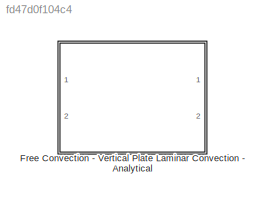
MODEL slx_fd47d0f104c4
KIND library
CONFIG AbsTol = auto
CONFIG FixedStep = auto
CONFIG MaxStep = auto
CONFIG MinStep = auto
CONFIG RelTol = 1e-3
CONFIG SampleTimeConstraint = Unconstrained
CONFIG Solver = ode45
CONFIG SolverMode = Auto
CONFIG SolverName = ode45
CONFIG StartTime = 0.0
CONFIG StopTime = 10.0
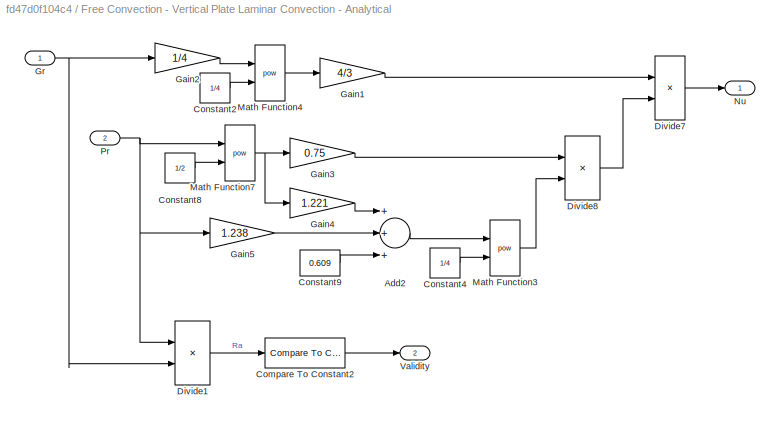
BLOCK [SubSystem] Free Convection - Vertical Plate Laminar Convection - Analytical
  Ports = [2, 2]
  RequestExecContextInheritance = off
BLOCK [Sum] Free Convection - Vertical Plate Laminar Convection - Analytical/Add2
  InputSameDT = off
  Inputs = +++
  OutDataTypeStr = Inherit: Inherit via internal rule
  Ports = [3, 1]
  SaturateOnIntegerOverflow = off
BLOCK [Reference] Free Convection - Vertical Plate Laminar Convection - Analytical/Compare To Constant2  REF=simulink/Logic and Bit
Operations/Compare
To Constant
  OutDataTypeStr = boolean
  Ports = [1, 1]
  SourceBlock = simulink/Logic and Bit\nOperations/Compare\nTo Constant
  SourceType = Compare To Constant
  ZeroCross = on
  const = 10^9
  relop = >
BLOCK [Constant] Free Convection - Vertical Plate Laminar Convection - Analytical/Constant2
  Value = 1/4
BLOCK [Constant] Free Convection - Vertical Plate Laminar Convection - Analytical/Constant4
  Value = 1/4
BLOCK [Constant] Free Convection - Vertical Plate Laminar Convection - Analytical/Constant8
  Value = 1/2
BLOCK [Constant] Free Convection - Vertical Plate Laminar Convection - Analytical/Constant9
  Value = 0.609
BLOCK [Product] Free Convection - Vertical Plate Laminar Convection - Analytical/Divide1
  InputSameDT = off
  Inputs = **
  OutDataTypeStr = Inherit: Inherit via internal rule
  Ports = [2, 1]
  RndMeth = Floor
  SaturateOnIntegerOverflow = off
BLOCK [Product] Free Convection - Vertical Plate Laminar Convection - Analytical/Divide7
  InputSameDT = off
  Inputs = **
  OutDataTypeStr = Inherit: Inherit via internal rule
  Ports = [2, 1]
  RndMeth = Floor
  SaturateOnIntegerOverflow = off
BLOCK [Product] Free Convection - Vertical Plate Laminar Convection - Analytical/Divide8
  InputSameDT = off
  Inputs = */
  OutDataTypeStr = Inherit: Inherit via internal rule
  Ports = [2, 1]
  RndMeth = Floor
  SaturateOnIntegerOverflow = off
BLOCK [Gain] Free Convection - Vertical Plate Laminar Convection - Analytical/Gain1
  Gain = 4/3
  OutDataTypeStr = Inherit: Inherit via internal rule
  ParamDataTypeStr = Inherit: Inherit via internal rule
  SaturateOnIntegerOverflow = off
BLOCK [Gain] Free Convection - Vertical Plate Laminar Convection - Analytical/Gain2
  Gain = 1/4
  OutDataTypeStr = Inherit: Inherit via internal rule
  ParamDataTypeStr = Inherit: Inherit via internal rule
  SaturateOnIntegerOverflow = off
BLOCK [Gain] Free Convection - Vertical Plate Laminar Convection - Analytical/Gain3
  Gain = 0.75
  OutDataTypeStr = Inherit: Inherit via internal rule
  ParamDataTypeStr = Inherit: Inherit via internal rule
  SaturateOnIntegerOverflow = off
BLOCK [Gain] Free Convection - Vertical Plate Laminar Convection - Analytical/Gain4
  Gain = 1.221
  OutDataTypeStr = Inherit: Inherit via internal rule
  ParamDataTypeStr = Inherit: Inherit via internal rule
  SaturateOnIntegerOverflow = off
BLOCK [Gain] Free Convection - Vertical Plate Laminar Convection - Analytical/Gain5
  Gain = 1.238
  OutDataTypeStr = Inherit: Inherit via internal rule
  ParamDataTypeStr = Inherit: Inherit via internal rule
  SaturateOnIntegerOverflow = off
BLOCK [Inport] Free Convection - Vertical Plate Laminar Convection - Analytical/Gr
  IconDisplay = Port number
BLOCK [Math] Free Convection - Vertical Plate Laminar Convection - Analytical/Math Function3
  Operator = pow
  Ports = [2, 1]
BLOCK [Math] Free Convection - Vertical Plate Laminar Convection - Analytical/Math Function4
  Operator = pow
  Ports = [2, 1]
BLOCK [Math] Free Convection - Vertical Plate Laminar Convection - Analytical/Math Function7
  Operator = pow
  Ports = [2, 1]
BLOCK [Outport] Free Convection - Vertical Plate Laminar Convection - Analytical/Nu
  IconDisplay = Port number
BLOCK [Inport] Free Convection - Vertical Plate Laminar Convection - Analytical/Pr
  IconDisplay = Port number
  Port = 2
BLOCK [Outport] Free Convection - Vertical Plate Laminar Convection - Analytical/Validity
  IconDisplay = Port number
  Port = 2
LINE Free Convection - Vertical Plate Laminar Convection - Analytical/Add2:1 -> Free Convection - Vertical Plate Laminar Convection - Analytical/Math Function3:1
LINE Free Convection - Vertical Plate Laminar Convection - Analytical/Compare To Constant2:1 -> Free Convection - Vertical Plate Laminar Convection - Analytical/Validity:1
LINE Free Convection - Vertical Plate Laminar Convection - Analytical/Constant2:1 -> Free Convection - Vertical Plate Laminar Convection - Analytical/Math Function4:2
LINE Free Convection - Vertical Plate Laminar Convection - Analytical/Constant4:1 -> Free Convection - Vertical Plate Laminar Convection - Analytical/Math Function3:2
LINE Free Convection - Vertical Plate Laminar Convection - Analytical/Constant8:1 -> Free Convection - Vertical Plate Laminar Convection - Analytical/Math Function7:2
LINE Free Convection - Vertical Plate Laminar Convection - Analytical/Constant9:1 -> Free Convection - Vertical Plate Laminar Convection - Analytical/Add2:3
LINE Free Convection - Vertical Plate Laminar Convection - Analytical/Divide1:1 -> Free Convection - Vertical Plate Laminar Convection - Analytical/Compare To Constant2:1
LINE Free Convection - Vertical Plate Laminar Convection - Analytical/Divide7:1 -> Free Convection - Vertical Plate Laminar Convection - Analytical/Nu:1
LINE Free Convection - Vertical Plate Laminar Convection - Analytical/Divide8:1 -> Free Convection - Vertical Plate Laminar Convection - Analytical/Divide7:2
LINE Free Convection - Vertical Plate Laminar Convection - Analytical/Gain1:1 -> Free Convection - Vertical Plate Laminar Convection - Analytical/Divide7:1
LINE Free Convection - Vertical Plate Laminar Convection - Analytical/Gain2:1 -> Free Convection - Vertical Plate Laminar Convection - Analytical/Math Function4:1
LINE Free Convection - Vertical Plate Laminar Convection - Analytical/Gain3:1 -> Free Convection - Vertical Plate Laminar Convection - Analytical/Divide8:1
LINE Free Convection - Vertical Plate Laminar Convection - Analytical/Gain4:1 -> Free Convection - Vertical Plate Laminar Convection - Analytical/Add2:1
LINE Free Convection - Vertical Plate Laminar Convection - Analytical/Gain5:1 -> Free Convection - Vertical Plate Laminar Convection - Analytical/Add2:2
NET Free Convection - Vertical Plate Laminar Convection - Analytical/Gr:1 -> Free Convection - Vertical Plate Laminar Convection - Analytical/Divide1:2, Free Convection - Vertical Plate Laminar Convection - Analytical/Gain2:1
LINE Free Convection - Vertical Plate Laminar Convection - Analytical/Math Function3:1 -> Free Convection - Vertical Plate Laminar Convection - Analytical/Divide8:2
LINE Free Convection - Vertical Plate Laminar Convection - Analytical/Math Function4:1 -> Free Convection - Vertical Plate Laminar Convection - Analytical/Gain1:1
NET Free Convection - Vertical Plate Laminar Convection - Analytical/Math Function7:1 -> Free Convection - Vertical Plate Laminar Convection - Analytical/Gain3:1, Free Convection - Vertical Plate Laminar Convection - Analytical/Gain4:1
NET Free Convection - Vertical Plate Laminar Convection - Analytical/Pr:1 -> Free Convection - Vertical Plate Laminar Convection - Analytical/Divide1:1, Free Convection - Vertical Plate Laminar Convection - Analytical/Gain5:1, Free Convection - Vertical Plate Laminar Convection - Analytical/Math Function7:1
note: NET lines group one-source signal fan-out (src -> all destinations, sorted); 1:1 wires keep LINE
